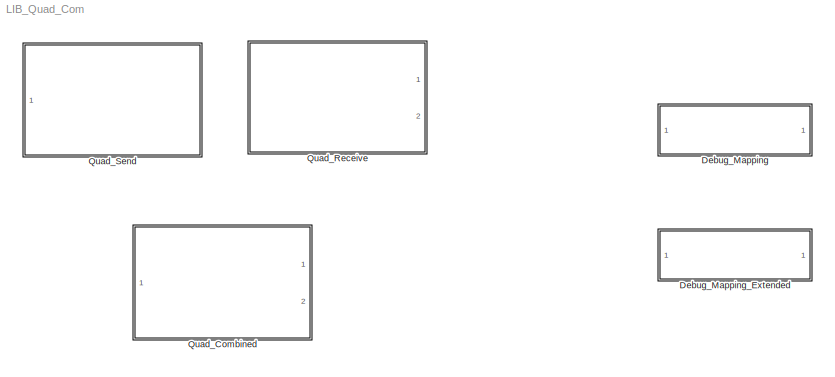
MODEL LIB_Quad_Com
KIND library
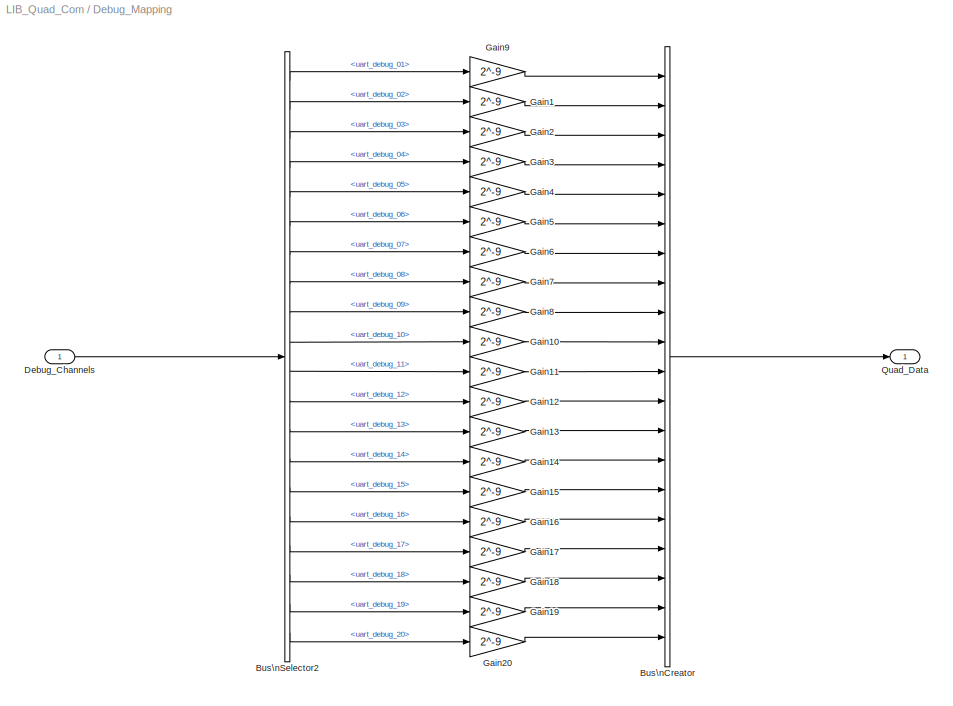
BLOCK [SubSystem] Debug_Mapping
  FunctionWithSeparateData = off
  MaskHideContents = off
  MinAlgLoopOccurrences = off
  Opaque = off
  Ports = [1, 1]
  PropExecContextOutsideSubsystem = off
  RTWSystemCode = Auto
  RequestExecContextInheritance = off
  SID = 61
BLOCK [BusCreator] Debug_Mapping/Bus\nCreator
  DisplayOption = bar
  Inputs = 20
  Ports = [20, 1]
  SID = 63
BLOCK [BusSelector] Debug_Mapping/Bus\nSelector2
  OutputSignals = uart_debug_01,uart_debug_02,uart_debug_03,uart_debug_04,uart_debug_05,uart_debug_06,uart_debug_07,uart_debug_08,uart_debug_09,uart_debug_10,uart_debug_11,uart_debug_12,uart_debug_13,uart_debug_14,uart_debug_15,uart_debug_16,uart_debug_17,uart_debug_18,uart_debug_19,uart_debug_20
  Ports = [1, 20]
  SID = 64
BLOCK [Inport] Debug_Mapping/Debug_Channels
  IconDisplay = Port number
  SID = 62
BLOCK [Gain] Debug_Mapping/Gain1
  Gain = 2^-9
  OutDataTypeStr = double
  ParamDataTypeStr = Inherit: Inherit via internal rule
  SID = 65
  SaturateOnIntegerOverflow = off
BLOCK [Gain] Debug_Mapping/Gain10
  Gain = 2^-9
  OutDataTypeStr = double
  ParamDataTypeStr = Inherit: Inherit via internal rule
  SID = 66
  SaturateOnIntegerOverflow = off
BLOCK [Gain] Debug_Mapping/Gain11
  Gain = 2^-9
  OutDataTypeStr = double
  ParamDataTypeStr = Inherit: Inherit via internal rule
  SID = 67
  SaturateOnIntegerOverflow = off
BLOCK [Gain] Debug_Mapping/Gain12
  Gain = 2^-9
  OutDataTypeStr = double
  ParamDataTypeStr = Inherit: Inherit via internal rule
  SID = 68
  SaturateOnIntegerOverflow = off
BLOCK [Gain] Debug_Mapping/Gain13
  Gain = 2^-9
  OutDataTypeStr = double
  ParamDataTypeStr = Inherit: Inherit via internal rule
  SID = 69
  SaturateOnIntegerOverflow = off
BLOCK [Gain] Debug_Mapping/Gain14
  Gain = 2^-9
  OutDataTypeStr = double
  ParamDataTypeStr = Inherit: Inherit via internal rule
  SID = 70
  SaturateOnIntegerOverflow = off
BLOCK [Gain] Debug_Mapping/Gain15
  Gain = 2^-9
  OutDataTypeStr = double
  ParamDataTypeStr = Inherit: Inherit via internal rule
  SID = 71
  SaturateOnIntegerOverflow = off
BLOCK [Gain] Debug_Mapping/Gain16
  Gain = 2^-9
  OutDataTypeStr = double
  ParamDataTypeStr = Inherit: Inherit via internal rule
  SID = 72
  SaturateOnIntegerOverflow = off
BLOCK [Gain] Debug_Mapping/Gain17
  Gain = 2^-9
  OutDataTypeStr = double
  ParamDataTypeStr = Inherit: Inherit via internal rule
  SID = 73
  SaturateOnIntegerOverflow = off
BLOCK [Gain] Debug_Mapping/Gain18
  Gain = 2^-9
  OutDataTypeStr = double
  ParamDataTypeStr = Inherit: Inherit via internal rule
  SID = 74
  SaturateOnIntegerOverflow = off
BLOCK [Gain] Debug_Mapping/Gain19
  Gain = 2^-9
  OutDataTypeStr = double
  ParamDataTypeStr = Inherit: Inherit via internal rule
  SID = 75
  SaturateOnIntegerOverflow = off
BLOCK [Gain] Debug_Mapping/Gain2
  Gain = 2^-9
  OutDataTypeStr = double
  ParamDataTypeStr = Inherit: Inherit via internal rule
  SID = 76
  SaturateOnIntegerOverflow = off
BLOCK [Gain] Debug_Mapping/Gain20
  Gain = 2^-9
  OutDataTypeStr = double
  ParamDataTypeStr = Inherit: Inherit via internal rule
  SID = 77
  SaturateOnIntegerOverflow = off
BLOCK [Gain] Debug_Mapping/Gain3
  Gain = 2^-9
  OutDataTypeStr = double
  ParamDataTypeStr = Inherit: Inherit via internal rule
  SID = 78
  SaturateOnIntegerOverflow = off
BLOCK [Gain] Debug_Mapping/Gain4
  Gain = 2^-9
  OutDataTypeStr = double
  ParamDataTypeStr = Inherit: Inherit via internal rule
  SID = 79
  SaturateOnIntegerOverflow = off
BLOCK [Gain] Debug_Mapping/Gain5
  Gain = 2^-9
  OutDataTypeStr = double
  ParamDataTypeStr = Inherit: Inherit via internal rule
  SID = 80
  SaturateOnIntegerOverflow = off
BLOCK [Gain] Debug_Mapping/Gain6
  Gain = 2^-9
  OutDataTypeStr = double
  ParamDataTypeStr = Inherit: Inherit via internal rule
  SID = 81
  SaturateOnIntegerOverflow = off
BLOCK [Gain] Debug_Mapping/Gain7
  Gain = 2^-9
  OutDataTypeStr = double
  ParamDataTypeStr = Inherit: Inherit via internal rule
  SID = 82
  SaturateOnIntegerOverflow = off
BLOCK [Gain] Debug_Mapping/Gain8
  Gain = 2^-9
  OutDataTypeStr = double
  ParamDataTypeStr = Inherit: Inherit via internal rule
  SID = 83
  SaturateOnIntegerOverflow = off
BLOCK [Gain] Debug_Mapping/Gain9
  Gain = 2^-9
  OutDataTypeStr = double
  ParamDataTypeStr = Inherit: Inherit via internal rule
  SID = 84
  SaturateOnIntegerOverflow = off
BLOCK [Outport] Debug_Mapping/Quad_Data
  IconDisplay = Port number
  SID = 85
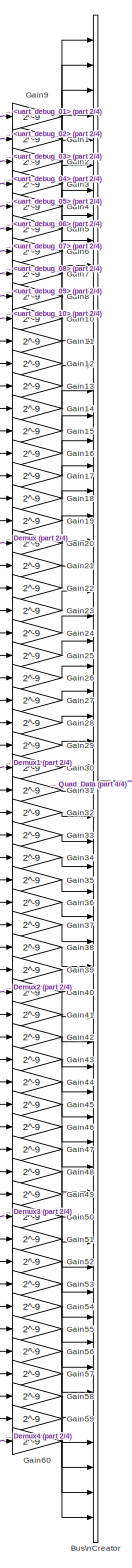
[diagram: Debug_Mapping_Extended - part 1/4, right side, full height]
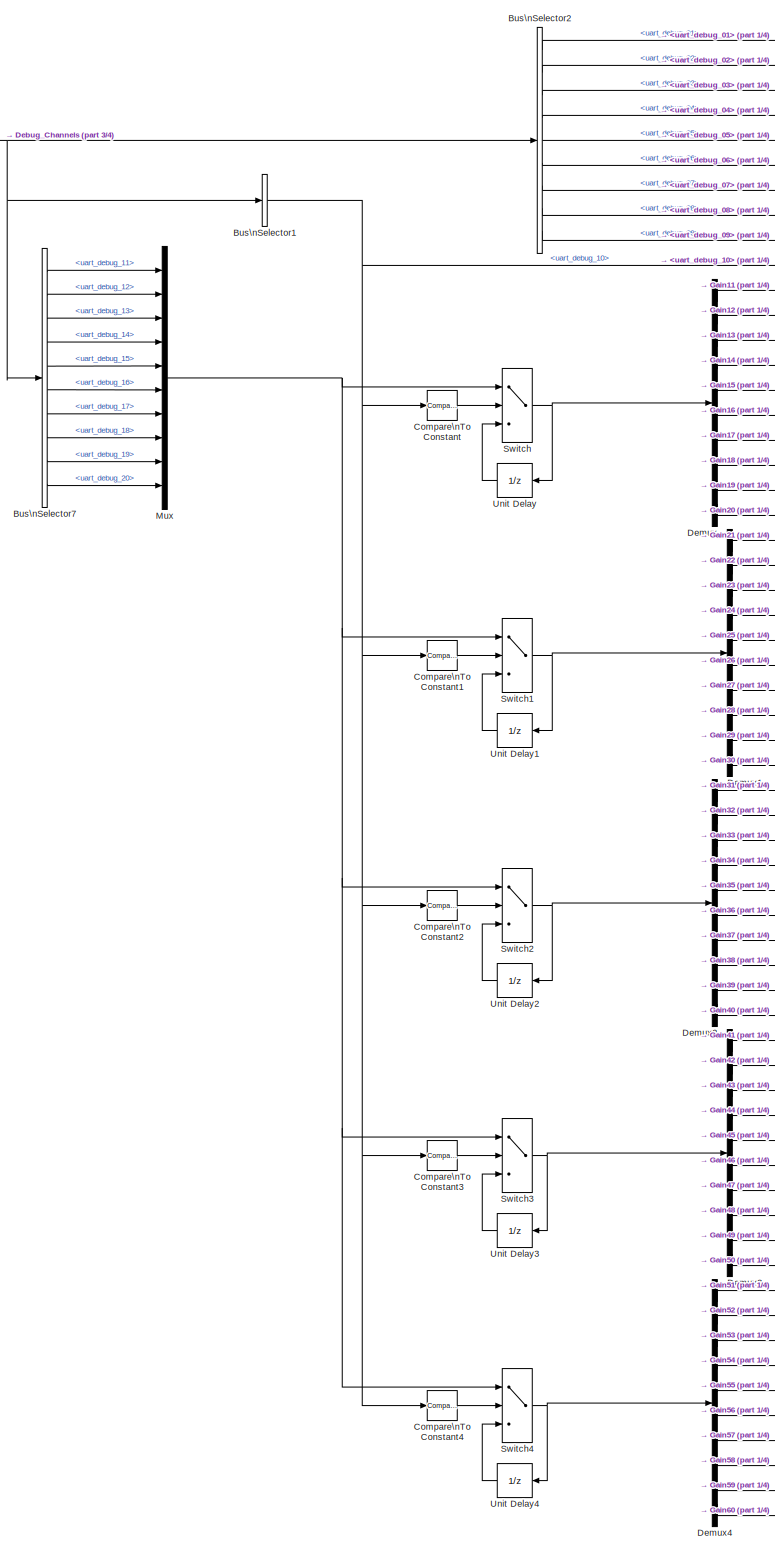
[diagram: Debug_Mapping_Extended - part 2/4, center side, full height]
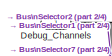
[diagram: Debug_Mapping_Extended - part 3/4, top left region]
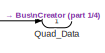
[diagram: Debug_Mapping_Extended - part 4/4, middle right region]
BLOCK [SubSystem] Debug_Mapping_Extended
  FunctionWithSeparateData = off
  MaskHideContents = off
  MinAlgLoopOccurrences = off
  Opaque = off
  Ports = [1, 1]
  PropExecContextOutsideSubsystem = off
  RTWSystemCode = Auto
  RequestExecContextInheritance = off
  SID = 12
BLOCK [BusCreator] Debug_Mapping_Extended/Bus\nCreator
  DisplayOption = bar
  Inputs = 60
  Ports = [60, 1]
  SID = 14
BLOCK [BusSelector] Debug_Mapping_Extended/Bus\nSelector1
  OutputSignals = uart_debug_10
  Ports = [1, 1]
  SID = 15
BLOCK [BusSelector] Debug_Mapping_Extended/Bus\nSelector2
  OutputSignals = uart_debug_01,uart_debug_02,uart_debug_03,uart_debug_04,uart_debug_05,uart_debug_06,uart_debug_07,uart_debug_08,uart_debug_09
  Ports = [1, 9]
  SID = 16
BLOCK [BusSelector] Debug_Mapping_Extended/Bus\nSelector7
  OutputSignals = uart_debug_11,uart_debug_12,uart_debug_13,uart_debug_14,uart_debug_15,uart_debug_16,uart_debug_17,uart_debug_18,uart_debug_19,uart_debug_20
  Ports = [1, 10]
  SID = 17
BLOCK [Reference] Debug_Mapping_Extended/Compare\nTo Constant  REF=simulink/Logic and Bit\nOperations/Compare\nTo Constant
  FunctionWithSeparateData = off
  GeneratePreprocessorConditionals = off
  LogicOutDataTypeMode = uint8
  Ports = [1, 1]
  RTWMemSecDataConstants = Inherit from model
  RTWMemSecDataInternal = Inherit from model
  RTWMemSecDataParameters = Inherit from model
  RTWMemSecFuncExecute = Inherit from model
  RTWMemSecFuncInitTerm = Inherit from model
  SID = 18
  ShowPortLabels = FromPortIcon
  SourceBlock = simulink/Logic and Bit\nOperations/Compare\nTo Constant
  SourceType = Compare To Constant
  SystemSampleTime = -1
  ZeroCross = off
  const = 1
  relop = ==
BLOCK [Reference] Debug_Mapping_Extended/Compare\nTo Constant1  REF=simulink/Logic and Bit\nOperations/Compare\nTo Constant
  FunctionWithSeparateData = off
  GeneratePreprocessorConditionals = off
  LogicOutDataTypeMode = uint8
  Ports = [1, 1]
  RTWMemSecDataConstants = Inherit from model
  RTWMemSecDataInternal = Inherit from model
  RTWMemSecDataParameters = Inherit from model
  RTWMemSecFuncExecute = Inherit from model
  RTWMemSecFuncInitTerm = Inherit from model
  SID = 19
  ShowPortLabels = FromPortIcon
  SourceBlock = simulink/Logic and Bit\nOperations/Compare\nTo Constant
  SourceType = Compare To Constant
  SystemSampleTime = -1
  ZeroCross = off
  const = 2
  relop = ==
BLOCK [Reference] Debug_Mapping_Extended/Compare\nTo Constant2  REF=simulink/Logic and Bit\nOperations/Compare\nTo Constant
  FunctionWithSeparateData = off
  GeneratePreprocessorConditionals = off
  LogicOutDataTypeMode = uint8
  Ports = [1, 1]
  RTWMemSecDataConstants = Inherit from model
  RTWMemSecDataInternal = Inherit from model
  RTWMemSecDataParameters = Inherit from model
  RTWMemSecFuncExecute = Inherit from model
  RTWMemSecFuncInitTerm = Inherit from model
  SID = 20
  ShowPortLabels = FromPortIcon
  SourceBlock = simulink/Logic and Bit\nOperations/Compare\nTo Constant
  SourceType = Compare To Constant
  SystemSampleTime = -1
  ZeroCross = off
  const = 3
  relop = ==
BLOCK [Reference] Debug_Mapping_Extended/Compare\nTo Constant3  REF=simulink/Logic and Bit\nOperations/Compare\nTo Constant
  FunctionWithSeparateData = off
  GeneratePreprocessorConditionals = off
  LogicOutDataTypeMode = uint8
  Ports = [1, 1]
  RTWMemSecDataConstants = Inherit from model
  RTWMemSecDataInternal = Inherit from model
  RTWMemSecDataParameters = Inherit from model
  RTWMemSecFuncExecute = Inherit from model
  RTWMemSecFuncInitTerm = Inherit from model
  SID = 21
  ShowPortLabels = FromPortIcon
  SourceBlock = simulink/Logic and Bit\nOperations/Compare\nTo Constant
  SourceType = Compare To Constant
  SystemSampleTime = -1
  ZeroCross = off
  const = 4
  relop = ==
BLOCK [Reference] Debug_Mapping_Extended/Compare\nTo Constant4  REF=simulink/Logic and Bit\nOperations/Compare\nTo Constant
  FunctionWithSeparateData = off
  GeneratePreprocessorConditionals = off
  LogicOutDataTypeMode = uint8
  Ports = [1, 1]
  RTWMemSecDataConstants = Inherit from model
  RTWMemSecDataInternal = Inherit from model
  RTWMemSecDataParameters = Inherit from model
  RTWMemSecFuncExecute = Inherit from model
  RTWMemSecFuncInitTerm = Inherit from model
  SID = 22
  ShowPortLabels = FromPortIcon
  SourceBlock = simulink/Logic and Bit\nOperations/Compare\nTo Constant
  SourceType = Compare To Constant
  SystemSampleTime = -1
  ZeroCross = off
  const = 5
  relop = ==
BLOCK [Inport] Debug_Mapping_Extended/Debug_Channels
  IconDisplay = Port number
  SID = 13
BLOCK [Demux] Debug_Mapping_Extended/Demux
  DisplayOption = bar
  Outputs = 10
  Ports = [1, 10]
  SID = 23
BLOCK [Demux] Debug_Mapping_Extended/Demux1
  DisplayOption = bar
  Outputs = 10
  Ports = [1, 10]
  SID = 24
BLOCK [Demux] Debug_Mapping_Extended/Demux2
  DisplayOption = bar
  Outputs = 10
  Ports = [1, 10]
  SID = 25
BLOCK [Demux] Debug_Mapping_Extended/Demux3
  DisplayOption = bar
  Outputs = 10
  Ports = [1, 10]
  SID = 26
BLOCK [Demux] Debug_Mapping_Extended/Demux4
  DisplayOption = bar
  Outputs = 10
  Ports = [1, 10]
  SID = 27
BLOCK [Gain] Debug_Mapping_Extended/Gain1
  Gain = 2^-9
  OutDataTypeStr = double
  ParamDataTypeStr = Inherit: Inherit via internal rule
  SID = 86
  SaturateOnIntegerOverflow = off
BLOCK [Gain] Debug_Mapping_Extended/Gain10
  Gain = 2^-9
  OutDataTypeStr = double
  ParamDataTypeStr = Inherit: Inherit via internal rule
  SID = 94
  SaturateOnIntegerOverflow = off
BLOCK [Gain] Debug_Mapping_Extended/Gain11
  Gain = 2^-9
  OutDataTypeStr = double
  ParamDataTypeStr = Inherit: Inherit via internal rule
  SID = 95
  SaturateOnIntegerOverflow = off
BLOCK [Gain] Debug_Mapping_Extended/Gain12
  Gain = 2^-9
  OutDataTypeStr = double
  ParamDataTypeStr = Inherit: Inherit via internal rule
  SID = 96
  SaturateOnIntegerOverflow = off
BLOCK [Gain] Debug_Mapping_Extended/Gain13
  Gain = 2^-9
  OutDataTypeStr = double
  ParamDataTypeStr = Inherit: Inherit via internal rule
  SID = 97
  SaturateOnIntegerOverflow = off
BLOCK [Gain] Debug_Mapping_Extended/Gain14
  Gain = 2^-9
  OutDataTypeStr = double
  ParamDataTypeStr = Inherit: Inherit via internal rule
  SID = 98
  SaturateOnIntegerOverflow = off
BLOCK [Gain] Debug_Mapping_Extended/Gain15
  Gain = 2^-9
  OutDataTypeStr = double
  ParamDataTypeStr = Inherit: Inherit via internal rule
  SID = 99
  SaturateOnIntegerOverflow = off
BLOCK [Gain] Debug_Mapping_Extended/Gain16
  Gain = 2^-9
  OutDataTypeStr = double
  ParamDataTypeStr = Inherit: Inherit via internal rule
  SID = 100
  SaturateOnIntegerOverflow = off
BLOCK [Gain] Debug_Mapping_Extended/Gain17
  Gain = 2^-9
  OutDataTypeStr = double
  ParamDataTypeStr = Inherit: Inherit via internal rule
  SID = 101
  SaturateOnIntegerOverflow = off
BLOCK [Gain] Debug_Mapping_Extended/Gain18
  Gain = 2^-9
  OutDataTypeStr = double
  ParamDataTypeStr = Inherit: Inherit via internal rule
  SID = 102
  SaturateOnIntegerOverflow = off
BLOCK [Gain] Debug_Mapping_Extended/Gain19
  Gain = 2^-9
  OutDataTypeStr = double
  ParamDataTypeStr = Inherit: Inherit via internal rule
  SID = 103
  SaturateOnIntegerOverflow = off
BLOCK [Gain] Debug_Mapping_Extended/Gain2
  Gain = 2^-9
  OutDataTypeStr = double
  ParamDataTypeStr = Inherit: Inherit via internal rule
  SID = 87
  SaturateOnIntegerOverflow = off
BLOCK [Gain] Debug_Mapping_Extended/Gain20
  Gain = 2^-9
  OutDataTypeStr = double
  ParamDataTypeStr = Inherit: Inherit via internal rule
  SID = 104
  SaturateOnIntegerOverflow = off
BLOCK [Gain] Debug_Mapping_Extended/Gain21
  Gain = 2^-9
  OutDataTypeStr = double
  ParamDataTypeStr = Inherit: Inherit via internal rule
  SID = 105
  SaturateOnIntegerOverflow = off
BLOCK [Gain] Debug_Mapping_Extended/Gain22
  Gain = 2^-9
  OutDataTypeStr = double
  ParamDataTypeStr = Inherit: Inherit via internal rule
  SID = 106
  SaturateOnIntegerOverflow = off
BLOCK [Gain] Debug_Mapping_Extended/Gain23
  Gain = 2^-9
  OutDataTypeStr = double
  ParamDataTypeStr = Inherit: Inherit via internal rule
  SID = 107
  SaturateOnIntegerOverflow = off
BLOCK [Gain] Debug_Mapping_Extended/Gain24
  Gain = 2^-9
  OutDataTypeStr = double
  ParamDataTypeStr = Inherit: Inherit via internal rule
  SID = 108
  SaturateOnIntegerOverflow = off
BLOCK [Gain] Debug_Mapping_Extended/Gain25
  Gain = 2^-9
  OutDataTypeStr = double
  ParamDataTypeStr = Inherit: Inherit via internal rule
  SID = 109
  SaturateOnIntegerOverflow = off
BLOCK [Gain] Debug_Mapping_Extended/Gain26
  Gain = 2^-9
  OutDataTypeStr = double
  ParamDataTypeStr = Inherit: Inherit via internal rule
  SID = 110
  SaturateOnIntegerOverflow = off
BLOCK [Gain] Debug_Mapping_Extended/Gain27
  Gain = 2^-9
  OutDataTypeStr = double
  ParamDataTypeStr = Inherit: Inherit via internal rule
  SID = 111
  SaturateOnIntegerOverflow = off
BLOCK [Gain] Debug_Mapping_Extended/Gain28
  Gain = 2^-9
  OutDataTypeStr = double
  ParamDataTypeStr = Inherit: Inherit via internal rule
  SID = 112
  SaturateOnIntegerOverflow = off
BLOCK [Gain] Debug_Mapping_Extended/Gain29
  Gain = 2^-9
  OutDataTypeStr = double
  ParamDataTypeStr = Inherit: Inherit via internal rule
  SID = 113
  SaturateOnIntegerOverflow = off
BLOCK [Gain] Debug_Mapping_Extended/Gain3
  Gain = 2^-9
  OutDataTypeStr = double
  ParamDataTypeStr = Inherit: Inherit via internal rule
  SID = 88
  SaturateOnIntegerOverflow = off
BLOCK [Gain] Debug_Mapping_Extended/Gain30
  Gain = 2^-9
  OutDataTypeStr = double
  ParamDataTypeStr = Inherit: Inherit via internal rule
  SID = 114
  SaturateOnIntegerOverflow = off
BLOCK [Gain] Debug_Mapping_Extended/Gain31
  Gain = 2^-9
  OutDataTypeStr = double
  ParamDataTypeStr = Inherit: Inherit via internal rule
  SID = 115
  SaturateOnIntegerOverflow = off
BLOCK [Gain] Debug_Mapping_Extended/Gain32
  Gain = 2^-9
  OutDataTypeStr = double
  ParamDataTypeStr = Inherit: Inherit via internal rule
  SID = 116
  SaturateOnIntegerOverflow = off
BLOCK [Gain] Debug_Mapping_Extended/Gain33
  Gain = 2^-9
  OutDataTypeStr = double
  ParamDataTypeStr = Inherit: Inherit via internal rule
  SID = 117
  SaturateOnIntegerOverflow = off
BLOCK [Gain] Debug_Mapping_Extended/Gain34
  Gain = 2^-9
  OutDataTypeStr = double
  ParamDataTypeStr = Inherit: Inherit via internal rule
  SID = 118
  SaturateOnIntegerOverflow = off
BLOCK [Gain] Debug_Mapping_Extended/Gain35
  Gain = 2^-9
  OutDataTypeStr = double
  ParamDataTypeStr = Inherit: Inherit via internal rule
  SID = 119
  SaturateOnIntegerOverflow = off
BLOCK [Gain] Debug_Mapping_Extended/Gain36
  Gain = 2^-9
  OutDataTypeStr = double
  ParamDataTypeStr = Inherit: Inherit via internal rule
  SID = 120
  SaturateOnIntegerOverflow = off
BLOCK [Gain] Debug_Mapping_Extended/Gain37
  Gain = 2^-9
  OutDataTypeStr = double
  ParamDataTypeStr = Inherit: Inherit via internal rule
  SID = 121
  SaturateOnIntegerOverflow = off
BLOCK [Gain] Debug_Mapping_Extended/Gain38
  Gain = 2^-9
  OutDataTypeStr = double
  ParamDataTypeStr = Inherit: Inherit via internal rule
  SID = 122
  SaturateOnIntegerOverflow = off
BLOCK [Gain] Debug_Mapping_Extended/Gain39
  Gain = 2^-9
  OutDataTypeStr = double
  ParamDataTypeStr = Inherit: Inherit via internal rule
  SID = 123
  SaturateOnIntegerOverflow = off
BLOCK [Gain] Debug_Mapping_Extended/Gain4
  Gain = 2^-9
  OutDataTypeStr = double
  ParamDataTypeStr = Inherit: Inherit via internal rule
  SID = 89
  SaturateOnIntegerOverflow = off
BLOCK [Gain] Debug_Mapping_Extended/Gain40
  Gain = 2^-9
  OutDataTypeStr = double
  ParamDataTypeStr = Inherit: Inherit via internal rule
  SID = 124
  SaturateOnIntegerOverflow = off
BLOCK [Gain] Debug_Mapping_Extended/Gain41
  Gain = 2^-9
  OutDataTypeStr = double
  ParamDataTypeStr = Inherit: Inherit via internal rule
  SID = 125
  SaturateOnIntegerOverflow = off
BLOCK [Gain] Debug_Mapping_Extended/Gain42
  Gain = 2^-9
  OutDataTypeStr = double
  ParamDataTypeStr = Inherit: Inherit via internal rule
  SID = 126
  SaturateOnIntegerOverflow = off
BLOCK [Gain] Debug_Mapping_Extended/Gain43
  Gain = 2^-9
  OutDataTypeStr = double
  ParamDataTypeStr = Inherit: Inherit via internal rule
  SID = 127
  SaturateOnIntegerOverflow = off
BLOCK [Gain] Debug_Mapping_Extended/Gain44
  Gain = 2^-9
  OutDataTypeStr = double
  ParamDataTypeStr = Inherit: Inherit via internal rule
  SID = 128
  SaturateOnIntegerOverflow = off
BLOCK [Gain] Debug_Mapping_Extended/Gain45
  Gain = 2^-9
  OutDataTypeStr = double
  ParamDataTypeStr = Inherit: Inherit via internal rule
  SID = 129
  SaturateOnIntegerOverflow = off
BLOCK [Gain] Debug_Mapping_Extended/Gain46
  Gain = 2^-9
  OutDataTypeStr = double
  ParamDataTypeStr = Inherit: Inherit via internal rule
  SID = 130
  SaturateOnIntegerOverflow = off
BLOCK [Gain] Debug_Mapping_Extended/Gain47
  Gain = 2^-9
  OutDataTypeStr = double
  ParamDataTypeStr = Inherit: Inherit via internal rule
  SID = 131
  SaturateOnIntegerOverflow = off
BLOCK [Gain] Debug_Mapping_Extended/Gain48
  Gain = 2^-9
  OutDataTypeStr = double
  ParamDataTypeStr = Inherit: Inherit via internal rule
  SID = 132
  SaturateOnIntegerOverflow = off
BLOCK [Gain] Debug_Mapping_Extended/Gain49
  Gain = 2^-9
  OutDataTypeStr = double
  ParamDataTypeStr = Inherit: Inherit via internal rule
  SID = 133
  SaturateOnIntegerOverflow = off
BLOCK [Gain] Debug_Mapping_Extended/Gain5
  Gain = 2^-9
  OutDataTypeStr = double
  ParamDataTypeStr = Inherit: Inherit via internal rule
  SID = 90
  SaturateOnIntegerOverflow = off
BLOCK [Gain] Debug_Mapping_Extended/Gain50
  Gain = 2^-9
  OutDataTypeStr = double
  ParamDataTypeStr = Inherit: Inherit via internal rule
  SID = 134
  SaturateOnIntegerOverflow = off
BLOCK [Gain] Debug_Mapping_Extended/Gain51
  Gain = 2^-9
  OutDataTypeStr = double
  ParamDataTypeStr = Inherit: Inherit via internal rule
  SID = 135
  SaturateOnIntegerOverflow = off
BLOCK [Gain] Debug_Mapping_Extended/Gain52
  Gain = 2^-9
  OutDataTypeStr = double
  ParamDataTypeStr = Inherit: Inherit via internal rule
  SID = 136
  SaturateOnIntegerOverflow = off
BLOCK [Gain] Debug_Mapping_Extended/Gain53
  Gain = 2^-9
  OutDataTypeStr = double
  ParamDataTypeStr = Inherit: Inherit via internal rule
  SID = 137
  SaturateOnIntegerOverflow = off
BLOCK [Gain] Debug_Mapping_Extended/Gain54
  Gain = 2^-9
  OutDataTypeStr = double
  ParamDataTypeStr = Inherit: Inherit via internal rule
  SID = 138
  SaturateOnIntegerOverflow = off
BLOCK [Gain] Debug_Mapping_Extended/Gain55
  Gain = 2^-9
  OutDataTypeStr = double
  ParamDataTypeStr = Inherit: Inherit via internal rule
  SID = 139
  SaturateOnIntegerOverflow = off
BLOCK [Gain] Debug_Mapping_Extended/Gain56
  Gain = 2^-9
  OutDataTypeStr = double
  ParamDataTypeStr = Inherit: Inherit via internal rule
  SID = 140
  SaturateOnIntegerOverflow = off
BLOCK [Gain] Debug_Mapping_Extended/Gain57
  Gain = 2^-9
  OutDataTypeStr = double
  ParamDataTypeStr = Inherit: Inherit via internal rule
  SID = 141
  SaturateOnIntegerOverflow = off
BLOCK [Gain] Debug_Mapping_Extended/Gain58
  Gain = 2^-9
  OutDataTypeStr = double
  ParamDataTypeStr = Inherit: Inherit via internal rule
  SID = 142
  SaturateOnIntegerOverflow = off
BLOCK [Gain] Debug_Mapping_Extended/Gain59
  Gain = 2^-9
  OutDataTypeStr = double
  ParamDataTypeStr = Inherit: Inherit via internal rule
  SID = 143
  SaturateOnIntegerOverflow = off
BLOCK [Gain] Debug_Mapping_Extended/Gain6
  Gain = 2^-9
  OutDataTypeStr = double
  ParamDataTypeStr = Inherit: Inherit via internal rule
  SID = 91
  SaturateOnIntegerOverflow = off
BLOCK [Gain] Debug_Mapping_Extended/Gain60
  Gain = 2^-9
  OutDataTypeStr = double
  ParamDataTypeStr = Inherit: Inherit via internal rule
  SID = 144
  SaturateOnIntegerOverflow = off
BLOCK [Gain] Debug_Mapping_Extended/Gain7
  Gain = 2^-9
  OutDataTypeStr = double
  ParamDataTypeStr = Inherit: Inherit via internal rule
  SID = 92
  SaturateOnIntegerOverflow = off
BLOCK [Gain] Debug_Mapping_Extended/Gain8
  Gain = 2^-9
  OutDataTypeStr = double
  ParamDataTypeStr = Inherit: Inherit via internal rule
  SID = 93
  SaturateOnIntegerOverflow = off
BLOCK [Gain] Debug_Mapping_Extended/Gain9
  Gain = 2^-9
  OutDataTypeStr = double
  ParamDataTypeStr = Inherit: Inherit via internal rule
  SID = 28
  SaturateOnIntegerOverflow = off
BLOCK [Mux] Debug_Mapping_Extended/Mux
  DisplayOption = bar
  Inputs = 10
  Ports = [10, 1]
  SID = 29
BLOCK [Outport] Debug_Mapping_Extended/Quad_Data
  IconDisplay = Port number
  SID = 40
BLOCK [Switch] Debug_Mapping_Extended/Switch
  Criteria = u2 ~= 0
  InputSameDT = off
  SID = 30
  SaturateOnIntegerOverflow = off
BLOCK [Switch] Debug_Mapping_Extended/Switch1
  Criteria = u2 ~= 0
  InputSameDT = off
  SID = 31
  SaturateOnIntegerOverflow = off
BLOCK [Switch] Debug_Mapping_Extended/Switch2
  Criteria = u2 ~= 0
  InputSameDT = off
  SID = 32
  SaturateOnIntegerOverflow = off
BLOCK [Switch] Debug_Mapping_Extended/Switch3
  Criteria = u2 ~= 0
  InputSameDT = off
  SID = 33
  SaturateOnIntegerOverflow = off
BLOCK [Switch] Debug_Mapping_Extended/Switch4
  Criteria = u2 ~= 0
  InputSameDT = off
  SID = 34
  SaturateOnIntegerOverflow = off
BLOCK [UnitDelay] Debug_Mapping_Extended/Unit Delay
  SID = 35
  SampleTime = -1
BLOCK [UnitDelay] Debug_Mapping_Extended/Unit Delay1
  SID = 36
  SampleTime = -1
BLOCK [UnitDelay] Debug_Mapping_Extended/Unit Delay2
  SID = 37
  SampleTime = -1
BLOCK [UnitDelay] Debug_Mapping_Extended/Unit Delay3
  SID = 38
  SampleTime = -1
BLOCK [UnitDelay] Debug_Mapping_Extended/Unit Delay4
  SID = 39
  SampleTime = -1
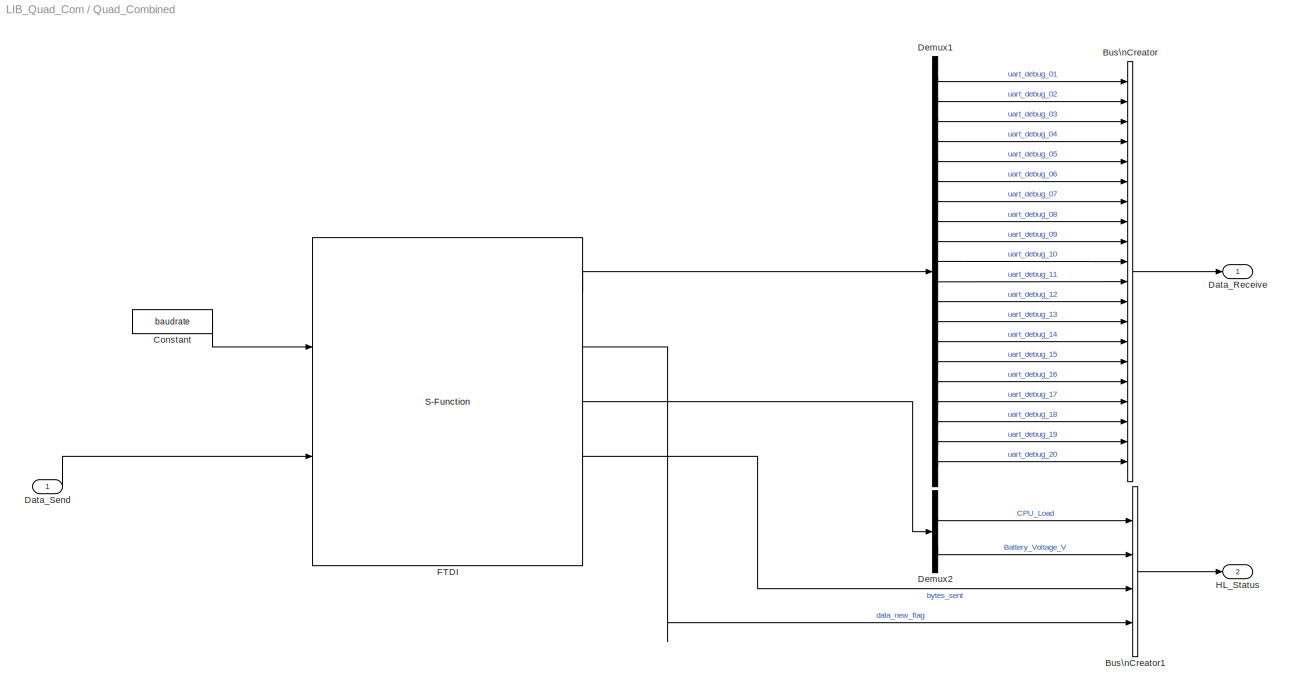
BLOCK [SubSystem] Quad_Combined
  FunctionWithSeparateData = off
  MaskDisplay = image(imread('hummingbird.jpg'),[.15, .15, .7, .7],'on'),\nport_label('input',1,'u'),\nport_label('output',1,'y'),\nport_label('output',2,'Status')
  MaskEnableString = on
  MaskHideContents = off
  MaskIconFrame = on
  MaskIconOpaque = on
  MaskIconRotate = port
  MaskIconUnits = normalized
  MaskPortRotate = default
  MaskPromptString = Baudrate
  MaskStyleString = edit
  MaskToolTipString = on
  MaskTunableValueString = on
  MaskValueString = 250000
  MaskVariables = baudrate=@1;
  MaskVisibilityString = on
  MinAlgLoopOccurrences = off
  Opaque = off
  Ports = [1, 2]
  PropExecContextOutsideSubsystem = off
  RTWSystemCode = Auto
  RequestExecContextInheritance = off
  SID = 46
BLOCK [BusCreator] Quad_Combined/Bus\nCreator
  DisplayOption = bar
  Inputs = 20
  Ports = [20, 1]
  SID = 48
BLOCK [BusCreator] Quad_Combined/Bus\nCreator1
  DisplayOption = bar
  Ports = [4, 1]
  SID = 49
BLOCK [Constant] Quad_Combined/Constant
  OutDataTypeStr = int32
  SID = 50
  SampleTime = 0.02
  Value = baudrate
BLOCK [Outport] Quad_Combined/Data_Receive
  IconDisplay = Port number
  SID = 57
BLOCK [Inport] Quad_Combined/Data_Send
  IconDisplay = Port number
  PortDimensions = [12 1]
  SID = 47
BLOCK [Demux] Quad_Combined/Demux1
  DisplayOption = bar
  Outputs = 20
  Ports = [1, 20]
  SID = 51
BLOCK [Demux] Quad_Combined/Demux2
  DisplayOption = bar
  Outputs = 2
  Ports = [1, 2]
  SID = 52
BLOCK [S-Function] Quad_Combined/FTDI
  CopyFcn = set_param(gcbh,'LinkStatus','none')
  EnableBusSupport = off
  FunctionName = FTDI_sfun
  InitFcn = try, set_param(gcb,'FunctionName','FTDI_sfun'), end
  MaskCapabilities = slmaskedcaps(gcbh)
  MaskDescription = The S-Function Builder block creates a wrapper C-MEX S-function from your supplied C code with multiple input ports, output ports, and a variable number of scalar, vector, or matrix parameters.  The input and output ports can propagate Simulink built-in data types, fixed-point datatypes, complex, frame, 1-D, and 2-D signals.  This block also supports discrete and continuous states of type real.  Y...<+108ch>  <repeated x3 — deduplicated; at blocks: FTDI, FTDI_send>
  MaskDisplay = plot(val(:,1),val(:,2)),disp(sys), port_label('input',1,'set_BaudRate'), port_label('input',2,'data_send'), port_label('output',1,'data_out'), port_label('output',2,'data_new_flag'), port_label('output',3,'HL_Status'), port_label('output',4,'bytes_sent')
  MaskIconFrame = on
  MaskIconOpaque = on
  MaskIconRotate = none
  MaskIconUnits = normalized
  MaskInitialization = val = [[.9  0.75 0.75 1 1 .9 .9 1]',[1 1 0.75 0.75 .9 .9 1 .9]'];try , sys = get_param(gcb,'SfunBuilderFcnName');if isempty(sys), sys = get_param(gcb,'FunctionName'); end,catch, sys = get_param(gcb,'FunctionName'); end  <repeated x3 — deduplicated; at blocks: FTDI, FTDI_send>
  MaskPortRotate = default
  MaskType = S-Function Builder
  OpenFcn = sfunctionwizard(gcbh)
  Ports = [2, 5]
  PreSaveFcn = try, set_param(gcb,'FunctionName','FTDI_sfun'), end
  SFunctionModules = FTDI_receive_sfun_wrapper ftditools
  SID = 53
  WizardData = DataTag0
BLOCK [Outport] Quad_Combined/HL_Status
  IconDisplay = Port number
  Port = 2
  SID = 58
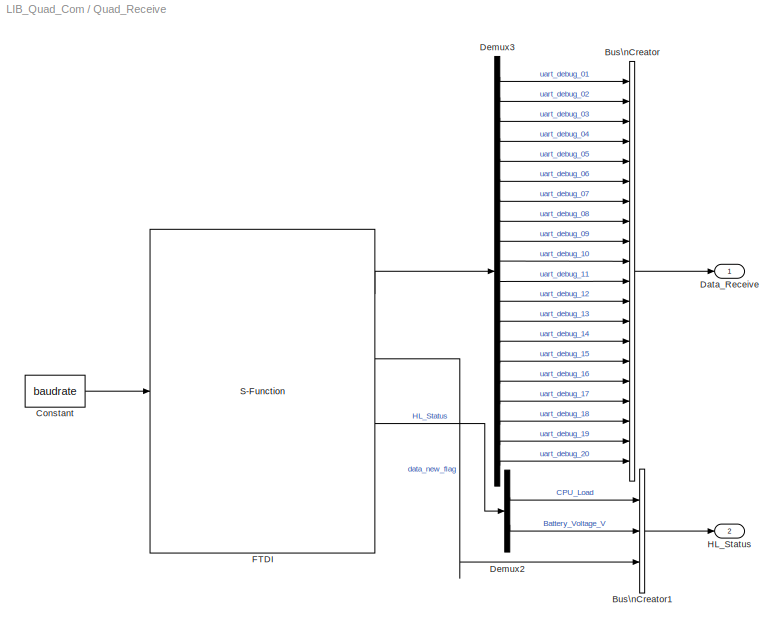
BLOCK [SubSystem] Quad_Receive
  FunctionWithSeparateData = off
  MaskDisplay = image(imread('hummingbird.jpg'),[.15, .15, .7, .7],'on'),\nport_label('output',1,'y'),\nport_label('output',2,'Status')
  MaskEnableString = on
  MaskHideContents = off
  MaskIconFrame = on
  MaskIconOpaque = on
  MaskIconRotate = port
  MaskIconUnits = normalized
  MaskPortRotate = default
  MaskPromptString = Baudrate
  MaskStyleString = edit
  MaskToolTipString = on
  MaskTunableValueString = on
  MaskValueString = 250000
  MaskVariables = baudrate=@1;
  MaskVisibilityString = on
  MinAlgLoopOccurrences = off
  Opaque = off
  Ports = [0, 2]
  PropExecContextOutsideSubsystem = off
  RTWSystemCode = Auto
  RequestExecContextInheritance = off
  SID = 1
BLOCK [BusCreator] Quad_Receive/Bus\nCreator
  DisplayOption = bar
  Inputs = 20
  Ports = [20, 1]
  SID = 2
BLOCK [BusCreator] Quad_Receive/Bus\nCreator1
  DisplayOption = bar
  Inputs = 3
  Ports = [3, 1]
  SID = 3
BLOCK [Constant] Quad_Receive/Constant
  OutDataTypeStr = int32
  SID = 4
  SampleTime = 0.02
  Value = baudrate
BLOCK [Outport] Quad_Receive/Data_Receive
  IconDisplay = Port number
  SID = 10
BLOCK [Demux] Quad_Receive/Demux2
  DisplayOption = bar
  Outputs = 2
  Ports = [1, 2]
  SID = 5
BLOCK [Demux] Quad_Receive/Demux3
  DisplayOption = bar
  Outputs = 20
  Ports = [1, 20]
  SID = 6
BLOCK [S-Function] Quad_Receive/FTDI
  CopyFcn = set_param(gcbh,'LinkStatus','none')
  EnableBusSupport = off
  FunctionName = FTDI_receive_sfun
  InitFcn = try, set_param(gcb,'FunctionName','FTDI_receive_sfun'), end
  MaskCapabilities = slmaskedcaps(gcbh)
  MaskDisplay = plot(val(:,1),val(:,2)),disp(sys), port_label('input',1,'BaudRate'), port_label('output',1,'data_out'), port_label('output',2,'data_new_flag'), port_label('output',3,'HL_Status')
  MaskIconFrame = on
  MaskIconOpaque = on
  MaskIconRotate = none
  MaskIconUnits = normalized
  MaskPortRotate = default
  MaskType = S-Function Builder
  OpenFcn = sfunctionwizard(gcbh)
  Ports = [1, 4]
  PreSaveFcn = try, set_param(gcb,'FunctionName','FTDI_receive_sfun'), end
  SFunctionModules = FTDI_receive_sfun_wrapper ftditools
  SID = 7
  WizardData = DataTag1
BLOCK [Outport] Quad_Receive/HL_Status
  IconDisplay = Port number
  Port = 2
  SID = 11
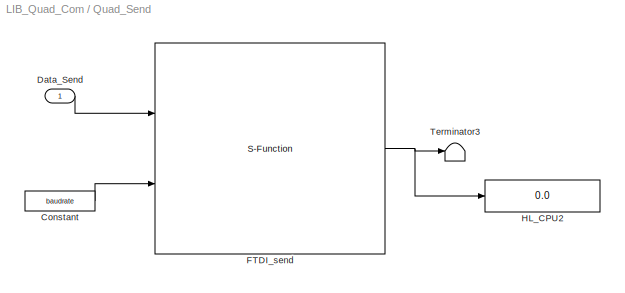
BLOCK [SubSystem] Quad_Send
  FunctionWithSeparateData = off
  MaskDisplay = image(imread('hummingbird.jpg'),[.15, .15, .7, .7],'on'),\nport_label('input',1,'u')
  MaskEnableString = on
  MaskHideContents = off
  MaskIconFrame = on
  MaskIconOpaque = on
  MaskIconRotate = port
  MaskIconUnits = normalized
  MaskPortRotate = default
  MaskPromptString = Baudrate
  MaskStyleString = edit
  MaskToolTipString = on
  MaskTunableValueString = on
  MaskValueString = 250000
  MaskVariables = baudrate=@1;
  MaskVisibilityString = on
  MinAlgLoopOccurrences = off
  Opaque = off
  Ports = [1]
  PropExecContextOutsideSubsystem = off
  RTWSystemCode = Auto
  RequestExecContextInheritance = off
  SID = 41
BLOCK [Constant] Quad_Send/Constant
  OutDataTypeStr = int32
  SID = 43
  Value = baudrate
BLOCK [Inport] Quad_Send/Data_Send
  IconDisplay = Port number
  PortDimensions = [12 1]
  SID = 42
BLOCK [S-Function] Quad_Send/FTDI_send
  CopyFcn = set_param(gcbh,'LinkStatus','none')
  EnableBusSupport = off
  FunctionName = FTDI_send_sfun
  InitFcn = try, set_param(gcb,'FunctionName','FTDI_send_sfun'), end
  MaskCapabilities = slmaskedcaps(gcbh)
  MaskDisplay = plot(val(:,1),val(:,2)),disp(sys), port_label('input',1,'data_send'), port_label('input',2,'BaudRate'), port_label('output',1,'bytes_sent')
  MaskIconFrame = on
  MaskIconOpaque = on
  MaskIconRotate = none
  MaskIconUnits = normalized
  MaskPortRotate = default
  MaskType = S-Function Builder
  OpenFcn = sfunctionwizard(gcbh)
  Ports = [2, 1]
  PreSaveFcn = try, set_param(gcb,'FunctionName','FTDI_send_sfun'), end
  SFunctionModules = FTDI_send_sfun_wrapper ftditools
  SID = 44
  WizardData = DataTag2
BLOCK [Display] Quad_Send/HL_CPU2
  Lockdown = off
  Ports = [1]
  SID = 145
BLOCK [Terminator] Quad_Send/Terminator3
  SID = 45
LINE Debug_Mapping/Bus\nCreator:1 -> Debug_Mapping/Quad_Data:1
LINE Debug_Mapping/Bus\nSelector2:1 -> Debug_Mapping/Gain9:1
LINE Debug_Mapping/Bus\nSelector2:10 -> Debug_Mapping/Gain10:1
LINE Debug_Mapping/Bus\nSelector2:11 -> Debug_Mapping/Gain11:1
LINE Debug_Mapping/Bus\nSelector2:12 -> Debug_Mapping/Gain12:1
LINE Debug_Mapping/Bus\nSelector2:13 -> Debug_Mapping/Gain13:1
LINE Debug_Mapping/Bus\nSelector2:14 -> Debug_Mapping/Gain14:1
LINE Debug_Mapping/Bus\nSelector2:15 -> Debug_Mapping/Gain15:1
LINE Debug_Mapping/Bus\nSelector2:16 -> Debug_Mapping/Gain16:1
LINE Debug_Mapping/Bus\nSelector2:17 -> Debug_Mapping/Gain17:1
LINE Debug_Mapping/Bus\nSelector2:18 -> Debug_Mapping/Gain18:1
LINE Debug_Mapping/Bus\nSelector2:19 -> Debug_Mapping/Gain19:1
LINE Debug_Mapping/Bus\nSelector2:2 -> Debug_Mapping/Gain1:1
LINE Debug_Mapping/Bus\nSelector2:20 -> Debug_Mapping/Gain20:1
LINE Debug_Mapping/Bus\nSelector2:3 -> Debug_Mapping/Gain2:1
LINE Debug_Mapping/Bus\nSelector2:4 -> Debug_Mapping/Gain3:1
LINE Debug_Mapping/Bus\nSelector2:5 -> Debug_Mapping/Gain4:1
LINE Debug_Mapping/Bus\nSelector2:6 -> Debug_Mapping/Gain5:1
LINE Debug_Mapping/Bus\nSelector2:7 -> Debug_Mapping/Gain6:1
LINE Debug_Mapping/Bus\nSelector2:8 -> Debug_Mapping/Gain7:1
LINE Debug_Mapping/Bus\nSelector2:9 -> Debug_Mapping/Gain8:1
LINE Debug_Mapping/Debug_Channels:1 -> Debug_Mapping/Bus\nSelector2:1
LINE Debug_Mapping/Gain10:1 -> Debug_Mapping/Bus\nCreator:10
LINE Debug_Mapping/Gain11:1 -> Debug_Mapping/Bus\nCreator:11
LINE Debug_Mapping/Gain12:1 -> Debug_Mapping/Bus\nCreator:12
LINE Debug_Mapping/Gain13:1 -> Debug_Mapping/Bus\nCreator:13
LINE Debug_Mapping/Gain14:1 -> Debug_Mapping/Bus\nCreator:14
LINE Debug_Mapping/Gain15:1 -> Debug_Mapping/Bus\nCreator:15
LINE Debug_Mapping/Gain16:1 -> Debug_Mapping/Bus\nCreator:16
LINE Debug_Mapping/Gain17:1 -> Debug_Mapping/Bus\nCreator:17
LINE Debug_Mapping/Gain18:1 -> Debug_Mapping/Bus\nCreator:18
LINE Debug_Mapping/Gain19:1 -> Debug_Mapping/Bus\nCreator:19
LINE Debug_Mapping/Gain1:1 -> Debug_Mapping/Bus\nCreator:2
LINE Debug_Mapping/Gain20:1 -> Debug_Mapping/Bus\nCreator:20
LINE Debug_Mapping/Gain2:1 -> Debug_Mapping/Bus\nCreator:3
LINE Debug_Mapping/Gain3:1 -> Debug_Mapping/Bus\nCreator:4
LINE Debug_Mapping/Gain4:1 -> Debug_Mapping/Bus\nCreator:5
LINE Debug_Mapping/Gain5:1 -> Debug_Mapping/Bus\nCreator:6
LINE Debug_Mapping/Gain6:1 -> Debug_Mapping/Bus\nCreator:7
LINE Debug_Mapping/Gain7:1 -> Debug_Mapping/Bus\nCreator:8
LINE Debug_Mapping/Gain8:1 -> Debug_Mapping/Bus\nCreator:9
LINE Debug_Mapping/Gain9:1 -> Debug_Mapping/Bus\nCreator:1
LINE Debug_Mapping_Extended/Bus\nCreator:1 -> Debug_Mapping_Extended/Quad_Data:1
NET Debug_Mapping_Extended/Bus\nSelector1:1 -> Debug_Mapping_Extended/Compare\nTo Constant1:1, Debug_Mapping_Extended/Compare\nTo Constant2:1, Debug_Mapping_Extended/Compare\nTo Constant3:1, Debug_Mapping_Extended/Compare\nTo Constant4:1, Debug_Mapping_Extended/Compare\nTo Constant:1, Debug_Mapping_Extended/Gain10:1
LINE Debug_Mapping_Extended/Bus\nSelector2:1 -> Debug_Mapping_Extended/Gain9:1
LINE Debug_Mapping_Extended/Bus\nSelector2:2 -> Debug_Mapping_Extended/Gain1:1
LINE Debug_Mapping_Extended/Bus\nSelector2:3 -> Debug_Mapping_Extended/Gain2:1
LINE Debug_Mapping_Extended/Bus\nSelector2:4 -> Debug_Mapping_Extended/Gain3:1
LINE Debug_Mapping_Extended/Bus\nSelector2:5 -> Debug_Mapping_Extended/Gain4:1
LINE Debug_Mapping_Extended/Bus\nSelector2:6 -> Debug_Mapping_Extended/Gain5:1
LINE Debug_Mapping_Extended/Bus\nSelector2:7 -> Debug_Mapping_Extended/Gain6:1
LINE Debug_Mapping_Extended/Bus\nSelector2:8 -> Debug_Mapping_Extended/Gain7:1
LINE Debug_Mapping_Extended/Bus\nSelector2:9 -> Debug_Mapping_Extended/Gain8:1
LINE Debug_Mapping_Extended/Bus\nSelector7:1 -> Debug_Mapping_Extended/Mux:1
LINE Debug_Mapping_Extended/Bus\nSelector7:10 -> Debug_Mapping_Extended/Mux:10
LINE Debug_Mapping_Extended/Bus\nSelector7:2 -> Debug_Mapping_Extended/Mux:2
LINE Debug_Mapping_Extended/Bus\nSelector7:3 -> Debug_Mapping_Extended/Mux:3
LINE Debug_Mapping_Extended/Bus\nSelector7:4 -> Debug_Mapping_Extended/Mux:4
LINE Debug_Mapping_Extended/Bus\nSelector7:5 -> Debug_Mapping_Extended/Mux:5
LINE Debug_Mapping_Extended/Bus\nSelector7:6 -> Debug_Mapping_Extended/Mux:6
LINE Debug_Mapping_Extended/Bus\nSelector7:7 -> Debug_Mapping_Extended/Mux:7
LINE Debug_Mapping_Extended/Bus\nSelector7:8 -> Debug_Mapping_Extended/Mux:8
LINE Debug_Mapping_Extended/Bus\nSelector7:9 -> Debug_Mapping_Extended/Mux:9
LINE Debug_Mapping_Extended/Compare\nTo Constant1:1 -> Debug_Mapping_Extended/Switch1:2
LINE Debug_Mapping_Extended/Compare\nTo Constant2:1 -> Debug_Mapping_Extended/Switch2:2
LINE Debug_Mapping_Extended/Compare\nTo Constant3:1 -> Debug_Mapping_Extended/Switch3:2
LINE Debug_Mapping_Extended/Compare\nTo Constant4:1 -> Debug_Mapping_Extended/Switch4:2
LINE Debug_Mapping_Extended/Compare\nTo Constant:1 -> Debug_Mapping_Extended/Switch:2
NET Debug_Mapping_Extended/Debug_Channels:1 -> Debug_Mapping_Extended/Bus\nSelector1:1, Debug_Mapping_Extended/Bus\nSelector2:1, Debug_Mapping_Extended/Bus\nSelector7:1
LINE Debug_Mapping_Extended/Demux1:1 -> Debug_Mapping_Extended/Gain21:1
LINE Debug_Mapping_Extended/Demux1:10 -> Debug_Mapping_Extended/Gain30:1
LINE Debug_Mapping_Extended/Demux1:2 -> Debug_Mapping_Extended/Gain22:1
LINE Debug_Mapping_Extended/Demux1:3 -> Debug_Mapping_Extended/Gain23:1
LINE Debug_Mapping_Extended/Demux1:4 -> Debug_Mapping_Extended/Gain24:1
LINE Debug_Mapping_Extended/Demux1:5 -> Debug_Mapping_Extended/Gain25:1
LINE Debug_Mapping_Extended/Demux1:6 -> Debug_Mapping_Extended/Gain26:1
LINE Debug_Mapping_Extended/Demux1:7 -> Debug_Mapping_Extended/Gain27:1
LINE Debug_Mapping_Extended/Demux1:8 -> Debug_Mapping_Extended/Gain28:1
LINE Debug_Mapping_Extended/Demux1:9 -> Debug_Mapping_Extended/Gain29:1
LINE Debug_Mapping_Extended/Demux2:1 -> Debug_Mapping_Extended/Gain31:1
LINE Debug_Mapping_Extended/Demux2:10 -> Debug_Mapping_Extended/Gain40:1
LINE Debug_Mapping_Extended/Demux2:2 -> Debug_Mapping_Extended/Gain32:1
LINE Debug_Mapping_Extended/Demux2:3 -> Debug_Mapping_Extended/Gain33:1
LINE Debug_Mapping_Extended/Demux2:4 -> Debug_Mapping_Extended/Gain34:1
LINE Debug_Mapping_Extended/Demux2:5 -> Debug_Mapping_Extended/Gain35:1
LINE Debug_Mapping_Extended/Demux2:6 -> Debug_Mapping_Extended/Gain36:1
LINE Debug_Mapping_Extended/Demux2:7 -> Debug_Mapping_Extended/Gain37:1
LINE Debug_Mapping_Extended/Demux2:8 -> Debug_Mapping_Extended/Gain38:1
LINE Debug_Mapping_Extended/Demux2:9 -> Debug_Mapping_Extended/Gain39:1
LINE Debug_Mapping_Extended/Demux3:1 -> Debug_Mapping_Extended/Gain41:1
LINE Debug_Mapping_Extended/Demux3:10 -> Debug_Mapping_Extended/Gain50:1
LINE Debug_Mapping_Extended/Demux3:2 -> Debug_Mapping_Extended/Gain42:1
LINE Debug_Mapping_Extended/Demux3:3 -> Debug_Mapping_Extended/Gain43:1
LINE Debug_Mapping_Extended/Demux3:4 -> Debug_Mapping_Extended/Gain44:1
LINE Debug_Mapping_Extended/Demux3:5 -> Debug_Mapping_Extended/Gain45:1
LINE Debug_Mapping_Extended/Demux3:6 -> Debug_Mapping_Extended/Gain46:1
LINE Debug_Mapping_Extended/Demux3:7 -> Debug_Mapping_Extended/Gain47:1
LINE Debug_Mapping_Extended/Demux3:8 -> Debug_Mapping_Extended/Gain48:1
LINE Debug_Mapping_Extended/Demux3:9 -> Debug_Mapping_Extended/Gain49:1
LINE Debug_Mapping_Extended/Demux4:1 -> Debug_Mapping_Extended/Gain51:1
LINE Debug_Mapping_Extended/Demux4:10 -> Debug_Mapping_Extended/Gain60:1
LINE Debug_Mapping_Extended/Demux4:2 -> Debug_Mapping_Extended/Gain52:1
LINE Debug_Mapping_Extended/Demux4:3 -> Debug_Mapping_Extended/Gain53:1
LINE Debug_Mapping_Extended/Demux4:4 -> Debug_Mapping_Extended/Gain54:1
LINE Debug_Mapping_Extended/Demux4:5 -> Debug_Mapping_Extended/Gain55:1
LINE Debug_Mapping_Extended/Demux4:6 -> Debug_Mapping_Extended/Gain56:1
LINE Debug_Mapping_Extended/Demux4:7 -> Debug_Mapping_Extended/Gain57:1
LINE Debug_Mapping_Extended/Demux4:8 -> Debug_Mapping_Extended/Gain58:1
LINE Debug_Mapping_Extended/Demux4:9 -> Debug_Mapping_Extended/Gain59:1
LINE Debug_Mapping_Extended/Demux:1 -> Debug_Mapping_Extended/Gain11:1
LINE Debug_Mapping_Extended/Demux:10 -> Debug_Mapping_Extended/Gain20:1
LINE Debug_Mapping_Extended/Demux:2 -> Debug_Mapping_Extended/Gain12:1
LINE Debug_Mapping_Extended/Demux:3 -> Debug_Mapping_Extended/Gain13:1
LINE Debug_Mapping_Extended/Demux:4 -> Debug_Mapping_Extended/Gain14:1
LINE Debug_Mapping_Extended/Demux:5 -> Debug_Mapping_Extended/Gain15:1
LINE Debug_Mapping_Extended/Demux:6 -> Debug_Mapping_Extended/Gain16:1
LINE Debug_Mapping_Extended/Demux:7 -> Debug_Mapping_Extended/Gain17:1
LINE Debug_Mapping_Extended/Demux:8 -> Debug_Mapping_Extended/Gain18:1
LINE Debug_Mapping_Extended/Demux:9 -> Debug_Mapping_Extended/Gain19:1
LINE Debug_Mapping_Extended/Gain10:1 -> Debug_Mapping_Extended/Bus\nCreator:10
LINE Debug_Mapping_Extended/Gain11:1 -> Debug_Mapping_Extended/Bus\nCreator:11
LINE Debug_Mapping_Extended/Gain12:1 -> Debug_Mapping_Extended/Bus\nCreator:12
LINE Debug_Mapping_Extended/Gain13:1 -> Debug_Mapping_Extended/Bus\nCreator:13
LINE Debug_Mapping_Extended/Gain14:1 -> Debug_Mapping_Extended/Bus\nCreator:14
LINE Debug_Mapping_Extended/Gain15:1 -> Debug_Mapping_Extended/Bus\nCreator:15
LINE Debug_Mapping_Extended/Gain16:1 -> Debug_Mapping_Extended/Bus\nCreator:16
LINE Debug_Mapping_Extended/Gain17:1 -> Debug_Mapping_Extended/Bus\nCreator:17
LINE Debug_Mapping_Extended/Gain18:1 -> Debug_Mapping_Extended/Bus\nCreator:18
LINE Debug_Mapping_Extended/Gain19:1 -> Debug_Mapping_Extended/Bus\nCreator:19
LINE Debug_Mapping_Extended/Gain1:1 -> Debug_Mapping_Extended/Bus\nCreator:2
LINE Debug_Mapping_Extended/Gain20:1 -> Debug_Mapping_Extended/Bus\nCreator:20
LINE Debug_Mapping_Extended/Gain21:1 -> Debug_Mapping_Extended/Bus\nCreator:21
LINE Debug_Mapping_Extended/Gain22:1 -> Debug_Mapping_Extended/Bus\nCreator:22
LINE Debug_Mapping_Extended/Gain23:1 -> Debug_Mapping_Extended/Bus\nCreator:23
LINE Debug_Mapping_Extended/Gain24:1 -> Debug_Mapping_Extended/Bus\nCreator:24
LINE Debug_Mapping_Extended/Gain25:1 -> Debug_Mapping_Extended/Bus\nCreator:25
LINE Debug_Mapping_Extended/Gain26:1 -> Debug_Mapping_Extended/Bus\nCreator:26
LINE Debug_Mapping_Extended/Gain27:1 -> Debug_Mapping_Extended/Bus\nCreator:27
LINE Debug_Mapping_Extended/Gain28:1 -> Debug_Mapping_Extended/Bus\nCreator:28
LINE Debug_Mapping_Extended/Gain29:1 -> Debug_Mapping_Extended/Bus\nCreator:29
LINE Debug_Mapping_Extended/Gain2:1 -> Debug_Mapping_Extended/Bus\nCreator:3
LINE Debug_Mapping_Extended/Gain30:1 -> Debug_Mapping_Extended/Bus\nCreator:30
LINE Debug_Mapping_Extended/Gain31:1 -> Debug_Mapping_Extended/Bus\nCreator:31
LINE Debug_Mapping_Extended/Gain32:1 -> Debug_Mapping_Extended/Bus\nCreator:32
LINE Debug_Mapping_Extended/Gain33:1 -> Debug_Mapping_Extended/Bus\nCreator:33
LINE Debug_Mapping_Extended/Gain34:1 -> Debug_Mapping_Extended/Bus\nCreator:34
LINE Debug_Mapping_Extended/Gain35:1 -> Debug_Mapping_Extended/Bus\nCreator:35
LINE Debug_Mapping_Extended/Gain36:1 -> Debug_Mapping_Extended/Bus\nCreator:36
LINE Debug_Mapping_Extended/Gain37:1 -> Debug_Mapping_Extended/Bus\nCreator:37
LINE Debug_Mapping_Extended/Gain38:1 -> Debug_Mapping_Extended/Bus\nCreator:38
LINE Debug_Mapping_Extended/Gain39:1 -> Debug_Mapping_Extended/Bus\nCreator:39
LINE Debug_Mapping_Extended/Gain3:1 -> Debug_Mapping_Extended/Bus\nCreator:4
LINE Debug_Mapping_Extended/Gain40:1 -> Debug_Mapping_Extended/Bus\nCreator:40
LINE Debug_Mapping_Extended/Gain41:1 -> Debug_Mapping_Extended/Bus\nCreator:41
LINE Debug_Mapping_Extended/Gain42:1 -> Debug_Mapping_Extended/Bus\nCreator:42
LINE Debug_Mapping_Extended/Gain43:1 -> Debug_Mapping_Extended/Bus\nCreator:43
LINE Debug_Mapping_Extended/Gain44:1 -> Debug_Mapping_Extended/Bus\nCreator:44
LINE Debug_Mapping_Extended/Gain45:1 -> Debug_Mapping_Extended/Bus\nCreator:45
LINE Debug_Mapping_Extended/Gain46:1 -> Debug_Mapping_Extended/Bus\nCreator:46
LINE Debug_Mapping_Extended/Gain47:1 -> Debug_Mapping_Extended/Bus\nCreator:47
LINE Debug_Mapping_Extended/Gain48:1 -> Debug_Mapping_Extended/Bus\nCreator:48
LINE Debug_Mapping_Extended/Gain49:1 -> Debug_Mapping_Extended/Bus\nCreator:49
LINE Debug_Mapping_Extended/Gain4:1 -> Debug_Mapping_Extended/Bus\nCreator:5
LINE Debug_Mapping_Extended/Gain50:1 -> Debug_Mapping_Extended/Bus\nCreator:50
LINE Debug_Mapping_Extended/Gain51:1 -> Debug_Mapping_Extended/Bus\nCreator:51
LINE Debug_Mapping_Extended/Gain52:1 -> Debug_Mapping_Extended/Bus\nCreator:52
LINE Debug_Mapping_Extended/Gain53:1 -> Debug_Mapping_Extended/Bus\nCreator:53
LINE Debug_Mapping_Extended/Gain54:1 -> Debug_Mapping_Extended/Bus\nCreator:54
LINE Debug_Mapping_Extended/Gain55:1 -> Debug_Mapping_Extended/Bus\nCreator:55
LINE Debug_Mapping_Extended/Gain56:1 -> Debug_Mapping_Extended/Bus\nCreator:56
LINE Debug_Mapping_Extended/Gain57:1 -> Debug_Mapping_Extended/Bus\nCreator:57
LINE Debug_Mapping_Extended/Gain58:1 -> Debug_Mapping_Extended/Bus\nCreator:58
LINE Debug_Mapping_Extended/Gain59:1 -> Debug_Mapping_Extended/Bus\nCreator:59
LINE Debug_Mapping_Extended/Gain5:1 -> Debug_Mapping_Extended/Bus\nCreator:6
LINE Debug_Mapping_Extended/Gain60:1 -> Debug_Mapping_Extended/Bus\nCreator:60
LINE Debug_Mapping_Extended/Gain6:1 -> Debug_Mapping_Extended/Bus\nCreator:7
LINE Debug_Mapping_Extended/Gain7:1 -> Debug_Mapping_Extended/Bus\nCreator:8
LINE Debug_Mapping_Extended/Gain8:1 -> Debug_Mapping_Extended/Bus\nCreator:9
LINE Debug_Mapping_Extended/Gain9:1 -> Debug_Mapping_Extended/Bus\nCreator:1
NET Debug_Mapping_Extended/Mux:1 -> Debug_Mapping_Extended/Switch1:1, Debug_Mapping_Extended/Switch2:1, Debug_Mapping_Extended/Switch3:1, Debug_Mapping_Extended/Switch4:1, Debug_Mapping_Extended/Switch:1
NET Debug_Mapping_Extended/Switch1:1 -> Debug_Mapping_Extended/Demux1:1, Debug_Mapping_Extended/Unit Delay1:1
NET Debug_Mapping_Extended/Switch2:1 -> Debug_Mapping_Extended/Demux2:1, Debug_Mapping_Extended/Unit Delay2:1
NET Debug_Mapping_Extended/Switch3:1 -> Debug_Mapping_Extended/Demux3:1, Debug_Mapping_Extended/Unit Delay3:1
NET Debug_Mapping_Extended/Switch4:1 -> Debug_Mapping_Extended/Demux4:1, Debug_Mapping_Extended/Unit Delay4:1
NET Debug_Mapping_Extended/Switch:1 -> Debug_Mapping_Extended/Demux:1, Debug_Mapping_Extended/Unit Delay:1
LINE Debug_Mapping_Extended/Unit Delay1:1 -> Debug_Mapping_Extended/Switch1:3
LINE Debug_Mapping_Extended/Unit Delay2:1 -> Debug_Mapping_Extended/Switch2:3
LINE Debug_Mapping_Extended/Unit Delay3:1 -> Debug_Mapping_Extended/Switch3:3
LINE Debug_Mapping_Extended/Unit Delay4:1 -> Debug_Mapping_Extended/Switch4:3
LINE Debug_Mapping_Extended/Unit Delay:1 -> Debug_Mapping_Extended/Switch:3
LINE Quad_Combined/Bus\nCreator1:1 -> Quad_Combined/HL_Status:1
LINE Quad_Combined/Bus\nCreator:1 -> Quad_Combined/Data_Receive:1
LINE Quad_Combined/Constant:1 -> Quad_Combined/FTDI:1
LINE Quad_Combined/Data_Send:1 -> Quad_Combined/FTDI:2
LINE Quad_Combined/Demux1:1 -> Quad_Combined/Bus\nCreator:1
LINE Quad_Combined/Demux1:10 -> Quad_Combined/Bus\nCreator:10
LINE Quad_Combined/Demux1:11 -> Quad_Combined/Bus\nCreator:11
LINE Quad_Combined/Demux1:12 -> Quad_Combined/Bus\nCreator:12
LINE Quad_Combined/Demux1:13 -> Quad_Combined/Bus\nCreator:13
LINE Quad_Combined/Demux1:14 -> Quad_Combined/Bus\nCreator:14
LINE Quad_Combined/Demux1:15 -> Quad_Combined/Bus\nCreator:15
LINE Quad_Combined/Demux1:16 -> Quad_Combined/Bus\nCreator:16
LINE Quad_Combined/Demux1:17 -> Quad_Combined/Bus\nCreator:17
LINE Quad_Combined/Demux1:18 -> Quad_Combined/Bus\nCreator:18
LINE Quad_Combined/Demux1:19 -> Quad_Combined/Bus\nCreator:19
LINE Quad_Combined/Demux1:2 -> Quad_Combined/Bus\nCreator:2
LINE Quad_Combined/Demux1:20 -> Quad_Combined/Bus\nCreator:20
LINE Quad_Combined/Demux1:3 -> Quad_Combined/Bus\nCreator:3
LINE Quad_Combined/Demux1:4 -> Quad_Combined/Bus\nCreator:4
LINE Quad_Combined/Demux1:5 -> Quad_Combined/Bus\nCreator:5
LINE Quad_Combined/Demux1:6 -> Quad_Combined/Bus\nCreator:6
LINE Quad_Combined/Demux1:7 -> Quad_Combined/Bus\nCreator:7
LINE Quad_Combined/Demux1:8 -> Quad_Combined/Bus\nCreator:8
LINE Quad_Combined/Demux1:9 -> Quad_Combined/Bus\nCreator:9
LINE Quad_Combined/Demux2:1 -> Quad_Combined/Bus\nCreator1:1
LINE Quad_Combined/Demux2:2 -> Quad_Combined/Bus\nCreator1:2
LINE Quad_Combined/FTDI:1 -> Quad_Combined/Demux1:1
LINE Quad_Combined/FTDI:2 -> Quad_Combined/Bus\nCreator1:4
LINE Quad_Combined/FTDI:3 -> Quad_Combined/Demux2:1
LINE Quad_Combined/FTDI:4 -> Quad_Combined/Bus\nCreator1:3
LINE Quad_Receive/Bus\nCreator1:1 -> Quad_Receive/HL_Status:1
LINE Quad_Receive/Bus\nCreator:1 -> Quad_Receive/Data_Receive:1
LINE Quad_Receive/Constant:1 -> Quad_Receive/FTDI:1
LINE Quad_Receive/Demux2:1 -> Quad_Receive/Bus\nCreator1:1
LINE Quad_Receive/Demux2:2 -> Quad_Receive/Bus\nCreator1:2
LINE Quad_Receive/Demux3:1 -> Quad_Receive/Bus\nCreator:1
LINE Quad_Receive/Demux3:10 -> Quad_Receive/Bus\nCreator:10
LINE Quad_Receive/Demux3:11 -> Quad_Receive/Bus\nCreator:11
LINE Quad_Receive/Demux3:12 -> Quad_Receive/Bus\nCreator:12
LINE Quad_Receive/Demux3:13 -> Quad_Receive/Bus\nCreator:13
LINE Quad_Receive/Demux3:14 -> Quad_Receive/Bus\nCreator:14
LINE Quad_Receive/Demux3:15 -> Quad_Receive/Bus\nCreator:15
LINE Quad_Receive/Demux3:16 -> Quad_Receive/Bus\nCreator:16
LINE Quad_Receive/Demux3:17 -> Quad_Receive/Bus\nCreator:17
LINE Quad_Receive/Demux3:18 -> Quad_Receive/Bus\nCreator:18
LINE Quad_Receive/Demux3:19 -> Quad_Receive/Bus\nCreator:19
LINE Quad_Receive/Demux3:2 -> Quad_Receive/Bus\nCreator:2
LINE Quad_Receive/Demux3:20 -> Quad_Receive/Bus\nCreator:20
LINE Quad_Receive/Demux3:3 -> Quad_Receive/Bus\nCreator:3
LINE Quad_Receive/Demux3:4 -> Quad_Receive/Bus\nCreator:4
LINE Quad_Receive/Demux3:5 -> Quad_Receive/Bus\nCreator:5
LINE Quad_Receive/Demux3:6 -> Quad_Receive/Bus\nCreator:6
LINE Quad_Receive/Demux3:7 -> Quad_Receive/Bus\nCreator:7
LINE Quad_Receive/Demux3:8 -> Quad_Receive/Bus\nCreator:8
LINE Quad_Receive/Demux3:9 -> Quad_Receive/Bus\nCreator:9
LINE Quad_Receive/FTDI:1 -> Quad_Receive/Demux3:1
LINE Quad_Receive/FTDI:2 -> Quad_Receive/Bus\nCreator1:3
LINE Quad_Receive/FTDI:3 -> Quad_Receive/Demux2:1
LINE Quad_Send/Constant:1 -> Quad_Send/FTDI_send:2
LINE Quad_Send/Data_Send:1 -> Quad_Send/FTDI_send:1
NET Quad_Send/FTDI_send:1 -> Quad_Send/HL_CPU2:1, Quad_Send/Terminator3:1
note: NET lines group one-source signal fan-out (src -> all destinations, sorted); 1:1 wires keep LINE
